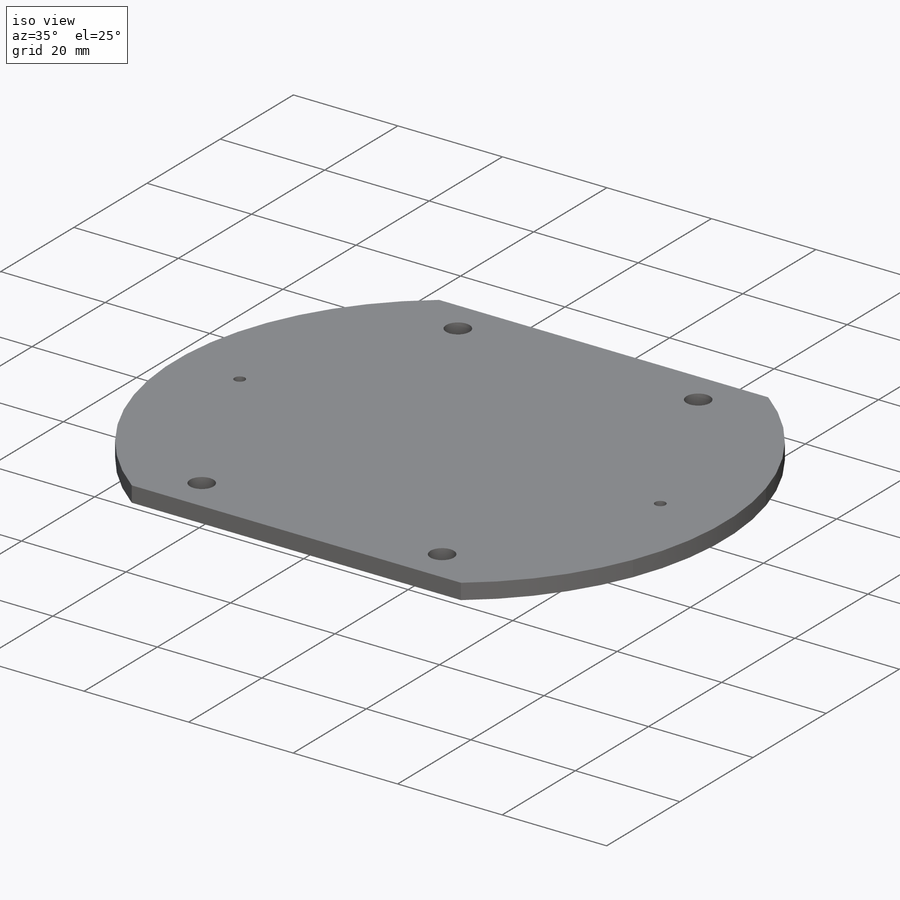
[diagram: iso view]
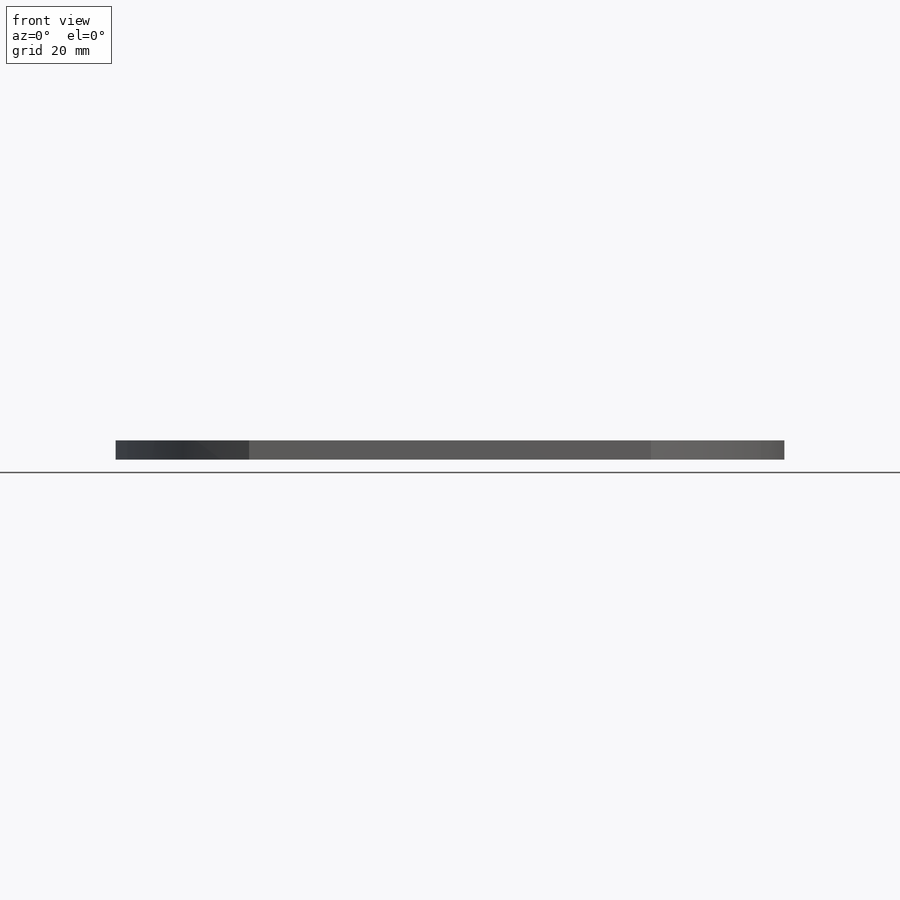
[diagram: front view]
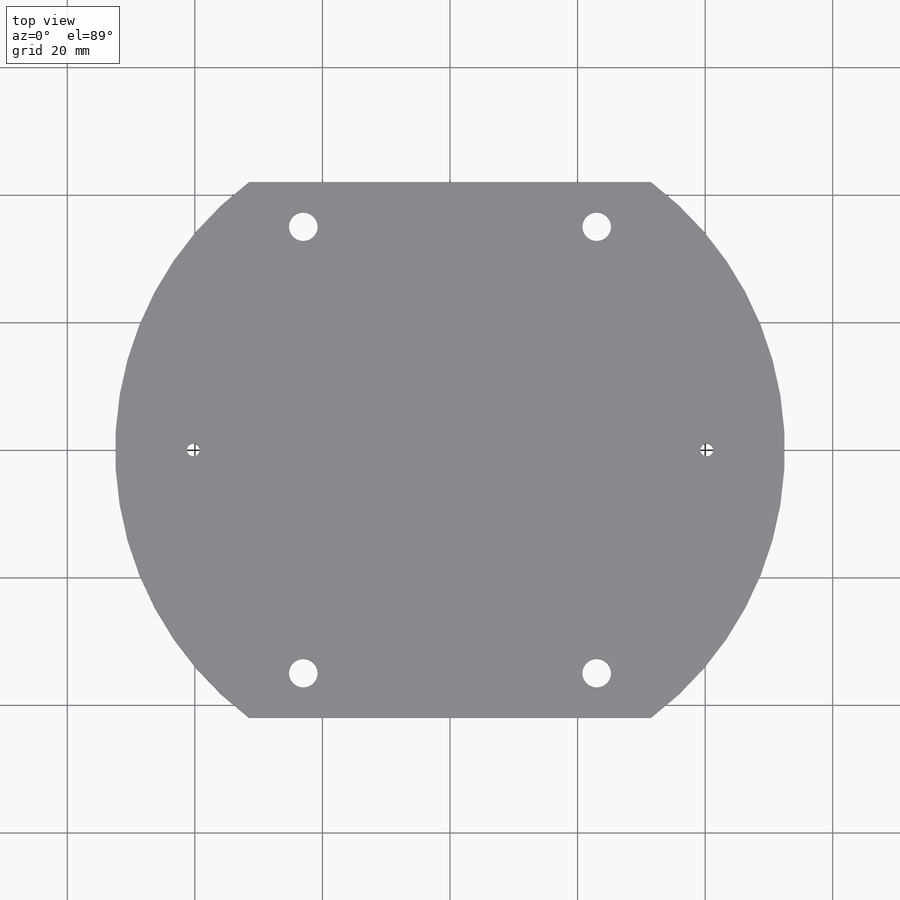
[diagram: top view]
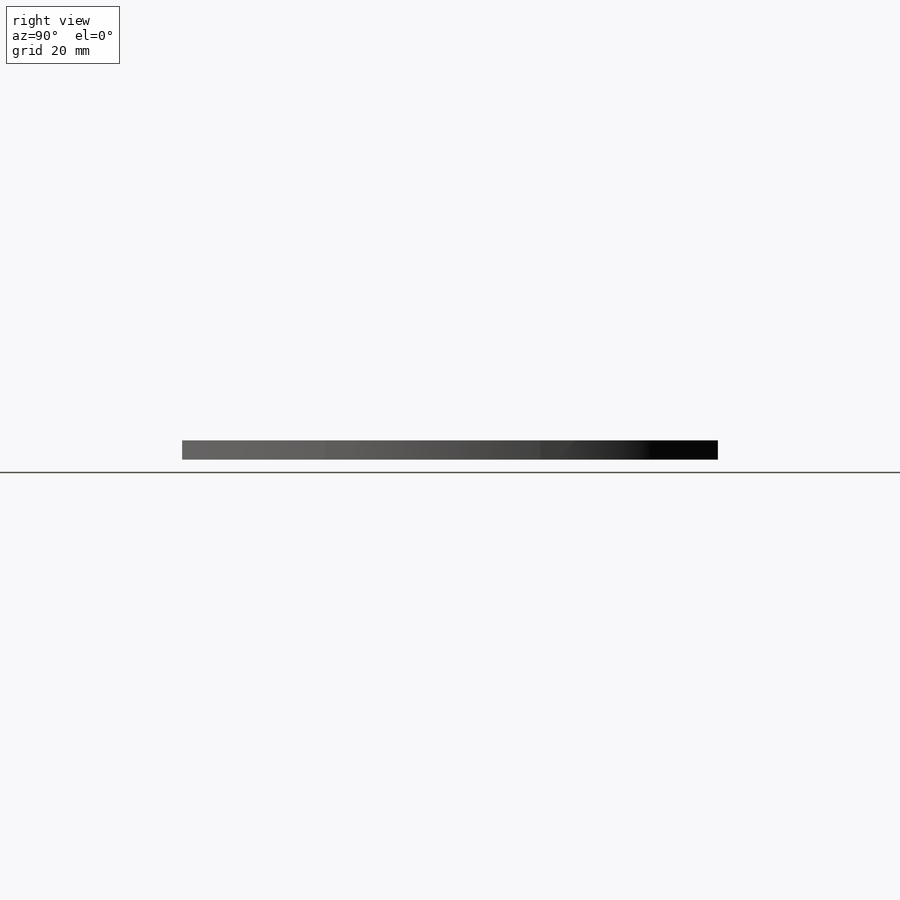
[diagram: right view]
SOLIDWORKS PART (.sldprt)
format: sldprt  version: not decoded by parser v0  size: 183,808 bytes
history: native  units: mm
features: sketch x4, material x1, extrude x1, cut_extrude x1, hole x1 + 1 further entry (+17 scaffold rows collapsed; 3 parser-record rows omitted)
feature tree (29):
  scaffold x17  (default folders/planes/origin — collapsed)
  material  "ABS"
  "params_print"
  parser-record x3  (decoder bookkeeping rows leaked as tree rows — omitted from the tree; the rows remain in map.json)
  sketch  "Base Sketch"  dims[base diameter=105.0mm D4=2.0mm D1=23.0mm D2=35.0mm D3=40.25mm]
  extrude  "Base"  Depth=3mm
  sketch  "Sketch2"  dims[D1=42.0mm]
  cut_extrude  "Side Cut"  [1 undecoded]
  hole  "#8 Clearance Hole1"  Diameter=4.4958mm Depth=26.4mm
  sketch  "Sketch4"
  sketch  "Sketch3"  dims[hole-wizard template sketch: 47 standard entries collapsed; hole parameters kept: c15.Hole Depth=26.4mm c15.D3=~14.816244mm c15.Drill Angle=118.0deg]
decode coverage: 5 of 7 modeling features carry decoded parameters; 1 rows unclassified (native names shown)
note: ~ marks probable driven/reference dimensions
note: 1 parameter value undecoded
note: suppression state not decoded; provenance and decode notes live in map.json
